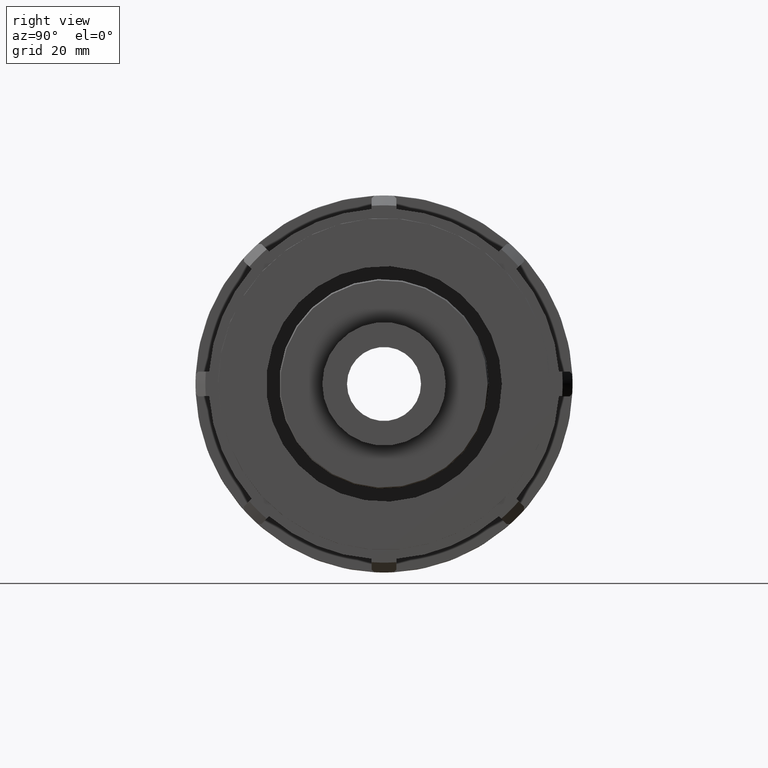
[diagram: clean part render]
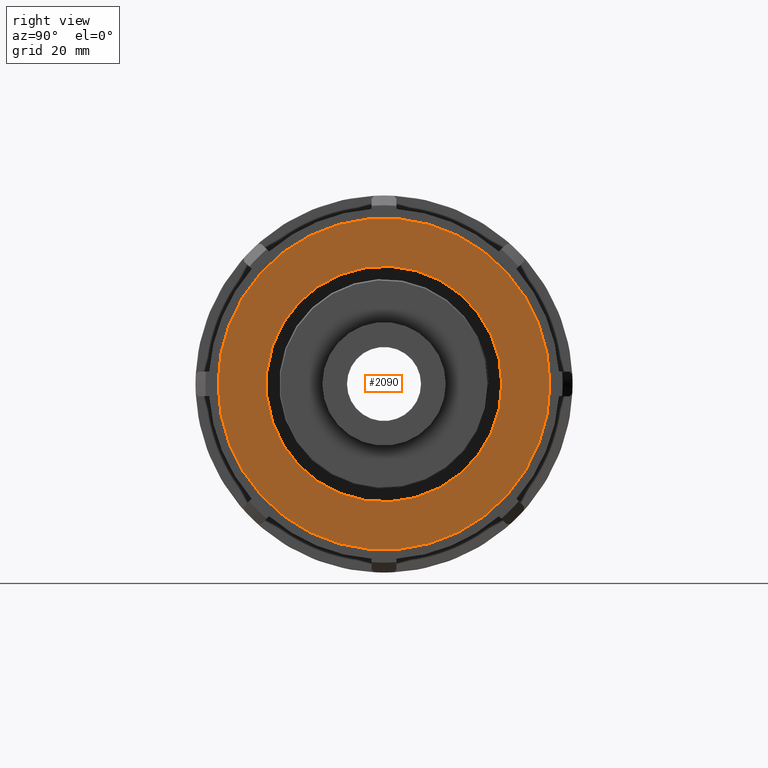
[diagram: same view with one face highlighted and labeled with its STEP entity id]
A machine part, right view. The second image highlights one B-rep face of the part: STEP entity #2090.
In plain terms, the highlighted planar face has unit normal (1, 0, 0).
Its self-contained STEP definition (entity closure, byte-faithful):
#77=FACE_BOUND('',#442,.T.);
#163=CIRCLE('',#2289,28.16);
#164=CIRCLE('',#2291,20.);
#307=FACE_OUTER_BOUND('',#441,.T.);
#441=EDGE_LOOP('',(#1897));
#442=EDGE_LOOP('',(#1898));
#1011=VERTEX_POINT('',#3550);
#1012=VERTEX_POINT('',#3553);
#1308=EDGE_CURVE('',#1011,#1011,#163,.T.);
#1309=EDGE_CURVE('',#1012,#1012,#164,.T.);
#1897=ORIENTED_EDGE('',*,*,#1308,.T.);
#1898=ORIENTED_EDGE('',*,*,#1309,.F.);
#1977=PLANE('',#2290);
#2090=ADVANCED_FACE('',(#307,#77),#1977,.T.);
#2289=AXIS2_PLACEMENT_3D('',#3551,#2864,#2865);
#2290=AXIS2_PLACEMENT_3D('',#3552,#2866,#2867);
#2291=AXIS2_PLACEMENT_3D('',#3554,#2868,#2869);
#2864=DIRECTION('center_axis',(1.,0.,0.));
#2865=DIRECTION('ref_axis',(0.,0.,-1.));
#2866=DIRECTION('center_axis',(1.,0.,0.));
#2867=DIRECTION('ref_axis',(0.,0.,-1.));
#2868=DIRECTION('center_axis',(1.,0.,0.));
#2869=DIRECTION('ref_axis',(0.,0.,-1.));
#3550=CARTESIAN_POINT('',(34.,28.16,0.));
#3551=CARTESIAN_POINT('Origin',(34.,0.,0.));
#3552=CARTESIAN_POINT('Origin',(34.,20.,0.));
#3553=CARTESIAN_POINT('',(34.,20.,0.));
#3554=CARTESIAN_POINT('Origin',(34.,0.,0.));